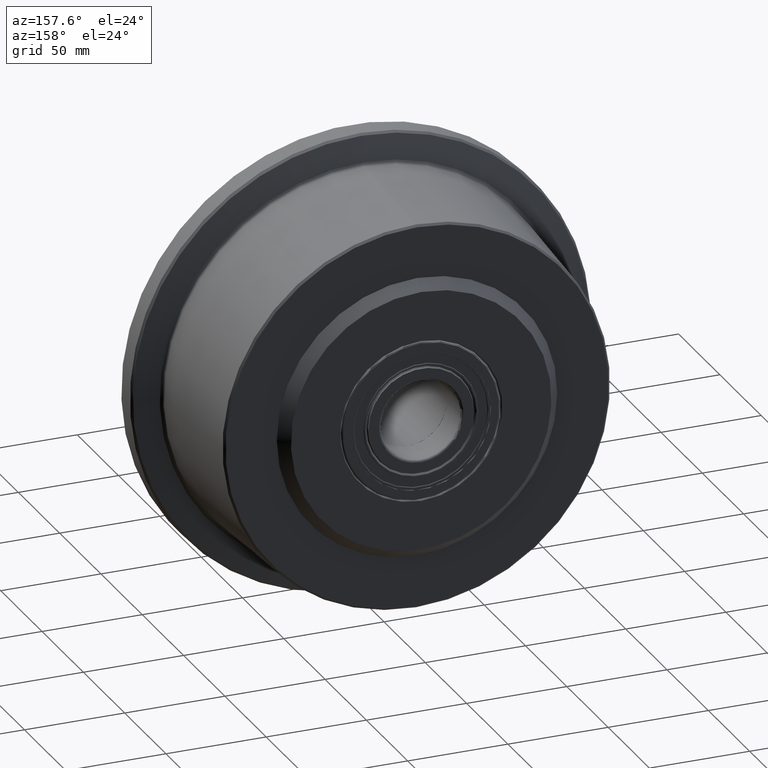
[diagram: clean part render]
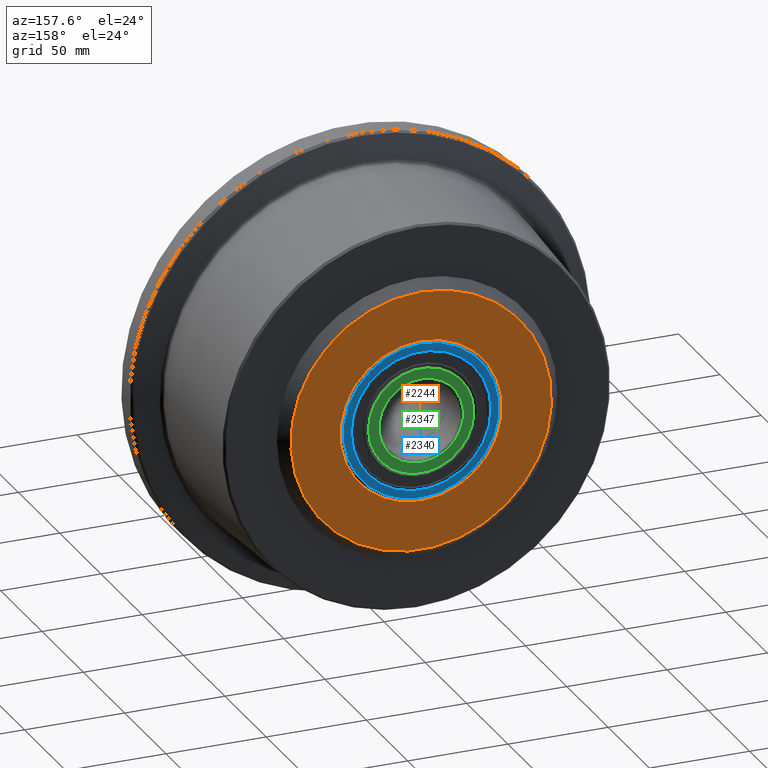
[diagram: same view with three faces highlighted in distinct colors, each labeled with its STEP entity id]
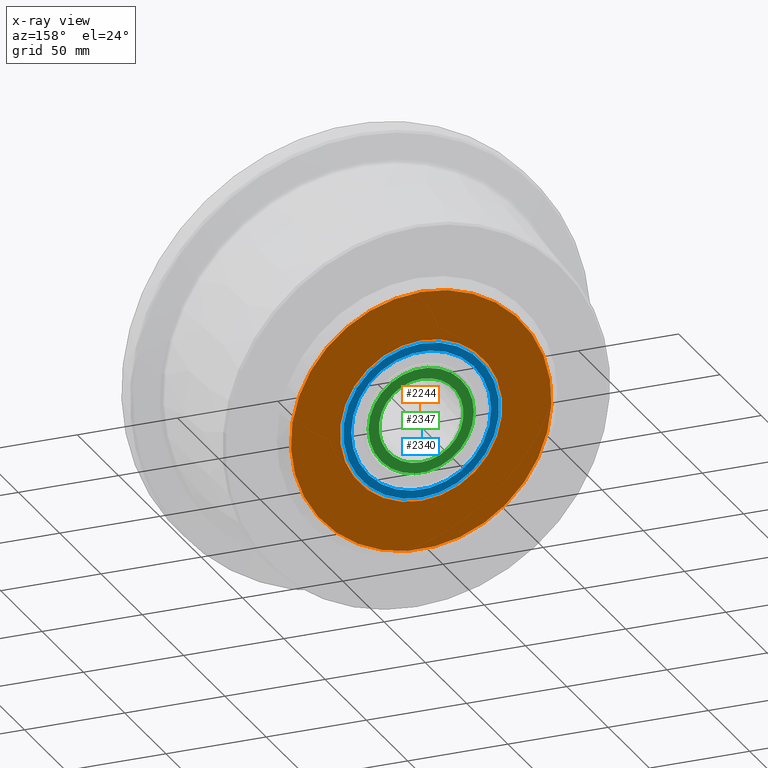
[diagram: x-ray of the same camera — body ghosted, the three highlighted faces saturated]
A machine part, auxiliary view with three faces highlighted in distinct colors.
The next image is the same camera in x-ray (body ghosted, the three faces saturated) — at least one of them is partly hidden behind the body in this view.
Their STEP definitions:

[orange] entity #2244 — the highlighted planar face has unit normal (0, -1, 0).
#200=FACE_BOUND('',#466,.T.);
#268=PLANE('',#2474);
#302=FACE_OUTER_BOUND('',#465,.T.);
#465=EDGE_LOOP('',(#1594));
#466=EDGE_LOOP('',(#1595));
#838=CIRCLE('',#2475,65.);
#839=CIRCLE('',#2476,40.5);
#1048=VERTEX_POINT('',#3804);
#1049=VERTEX_POINT('',#3806);
#1275=EDGE_CURVE('',#1048,#1048,#838,.F.);
#1276=EDGE_CURVE('',#1049,#1049,#839,.T.);
#1594=ORIENTED_EDGE('',*,*,#1275,.T.);
#1595=ORIENTED_EDGE('',*,*,#1276,.T.);
#2244=ADVANCED_FACE('',(#302,#200),#268,.F.);
#2474=AXIS2_PLACEMENT_3D('',#3803,#2909,#2910);
#2475=AXIS2_PLACEMENT_3D('',#3805,#2911,#2912);
#2476=AXIS2_PLACEMENT_3D('',#3807,#2913,#2914);
#2909=DIRECTION('center_axis',(0.,-1.,0.));
#2910=DIRECTION('ref_axis',(0.,0.,-1.));
#2911=DIRECTION('center_axis',(0.,-1.,0.));
#2912=DIRECTION('ref_axis',(0.,0.,-1.));
#2913=DIRECTION('center_axis',(0.,-1.,0.));
#2914=DIRECTION('ref_axis',(0.,0.,-1.));
#3803=CARTESIAN_POINT('Origin',(0.,45.,-3.46944695195362E-15));
#3804=CARTESIAN_POINT('',(-7.9602041944578E-15,45.,65.));
#3805=CARTESIAN_POINT('Origin',(0.,45.,-3.46944695195362E-15));
#3806=CARTESIAN_POINT('',(0.,45.,-40.5));
#3807=CARTESIAN_POINT('Origin',(0.,45.,0.));

[blue] entity #2340 — the highlighted planar face has unit normal (0, 1, 0).
#234=FACE_BOUND('',#596,.T.);
#284=PLANE('',#2720);
#398=FACE_OUTER_BOUND('',#595,.T.);
#595=EDGE_LOOP('',(#1991));
#596=EDGE_LOOP('',(#1992));
#956=CIRCLE('',#2699,34.9);
#957=CIRCLE('',#2701,38.9);
#1170=VERTEX_POINT('',#4189);
#1171=VERTEX_POINT('',#4193);
#1451=EDGE_CURVE('',#1170,#1170,#956,.T.);
#1452=EDGE_CURVE('',#1171,#1171,#957,.T.);
#1991=ORIENTED_EDGE('',*,*,#1452,.T.);
#1992=ORIENTED_EDGE('',*,*,#1451,.F.);
#2340=ADVANCED_FACE('',(#398,#234),#284,.T.);
#2699=AXIS2_PLACEMENT_3D('',#4191,#3399,#3400);
#2701=AXIS2_PLACEMENT_3D('',#4194,#3403,#3404);
#2720=AXIS2_PLACEMENT_3D('',#4227,#3447,#3448);
#3399=DIRECTION('center_axis',(1.,0.,0.));
#3400=DIRECTION('ref_axis',(0.,1.,0.));
#3403=DIRECTION('center_axis',(1.,0.,0.));
#3404=DIRECTION('ref_axis',(0.,1.,0.));
#3447=DIRECTION('center_axis',(1.,0.,0.));
#3448=DIRECTION('ref_axis',(0.,1.,0.));
#4189=CARTESIAN_POINT('',(18.,-34.9,4.2738761748401E-15));
#4191=CARTESIAN_POINT('Origin',(18.,0.,0.));
#4193=CARTESIAN_POINT('',(18.,-4.7638760486832E-15,38.9));
#4194=CARTESIAN_POINT('Origin',(18.,0.,0.));
#4227=CARTESIAN_POINT('Origin',(18.,36.9,0.));

[green] entity #2347 — the highlighted planar face has unit normal (0, 1, 0).
#235=FACE_BOUND('',#604,.T.);
#285=PLANE('',#2742);
#405=FACE_OUTER_BOUND('',#603,.T.);
#603=EDGE_LOOP('',(#2025));
#604=EDGE_LOOP('',(#2026));
#973=CIRCLE('',#2728,26.3);
#982=CIRCLE('',#2741,21.1);
#1184=VERTEX_POINT('',#4239);
#1191=VERTEX_POINT('',#4261);
#1474=EDGE_CURVE('',#1184,#1184,#973,.T.);
#1486=EDGE_CURVE('',#1191,#1191,#982,.T.);
#2025=ORIENTED_EDGE('',*,*,#1474,.T.);
#2026=ORIENTED_EDGE('',*,*,#1486,.F.);
#2347=ADVANCED_FACE('',(#405,#235),#285,.T.);
#2728=AXIS2_PLACEMENT_3D('',#4240,#3463,#3464);
#2741=AXIS2_PLACEMENT_3D('',#4263,#3492,#3493);
#2742=AXIS2_PLACEMENT_3D('',#4264,#3494,#3495);
#3463=DIRECTION('center_axis',(1.,0.,0.));
#3464=DIRECTION('ref_axis',(0.,1.,0.));
#3492=DIRECTION('center_axis',(1.,0.,0.));
#3493=DIRECTION('ref_axis',(0.,1.,0.));
#3494=DIRECTION('center_axis',(1.,0.,0.));
#3495=DIRECTION('ref_axis',(0.,1.,0.));
#4239=CARTESIAN_POINT('',(18.,-26.3,3.22071471055285E-15));
#4240=CARTESIAN_POINT('Origin',(18.,0.,0.));
#4261=CARTESIAN_POINT('',(18.,-2.58400474620092E-15,21.1));
#4263=CARTESIAN_POINT('Origin',(18.,0.,0.));
#4264=CARTESIAN_POINT('Origin',(18.,23.7,0.));